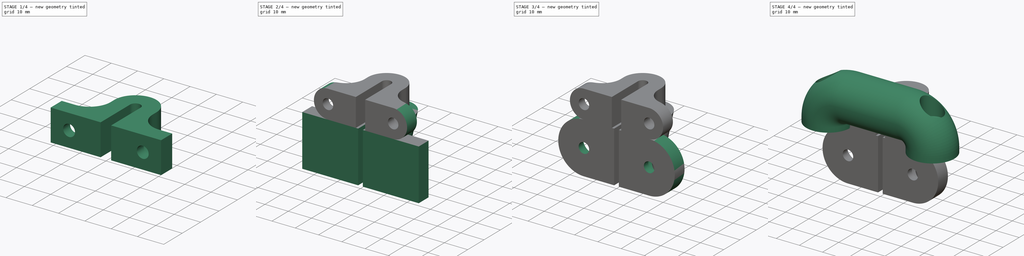
[diagram: build sequence overview — one tinted view per stage of 4, left to right]
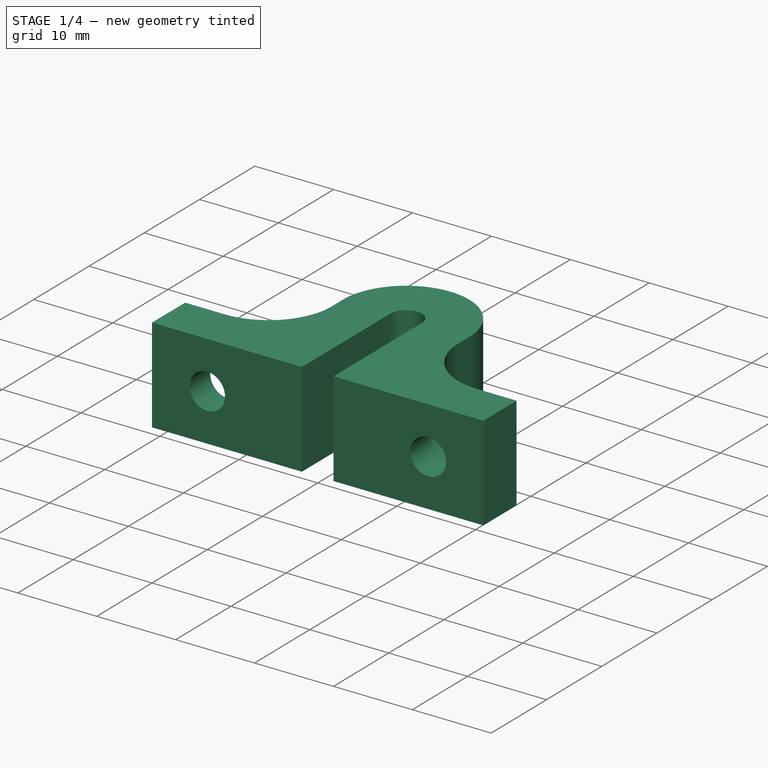
[diagram: stage 1 of 4 — iso view after this stage's code; geometry added in this stage tinted green]
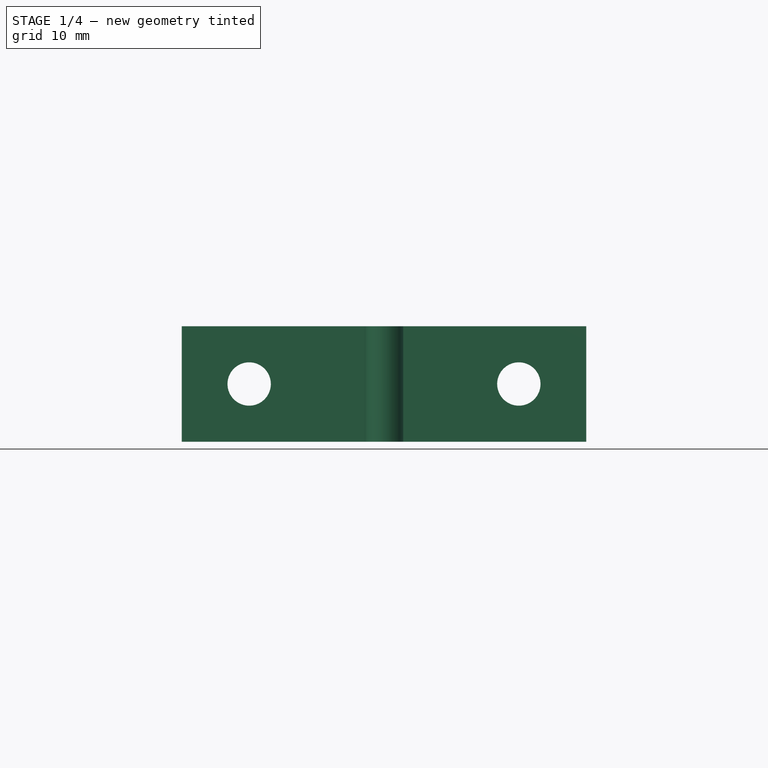
[diagram: stage 1 of 4 — front view after this stage's code; geometry added in this stage tinted green]
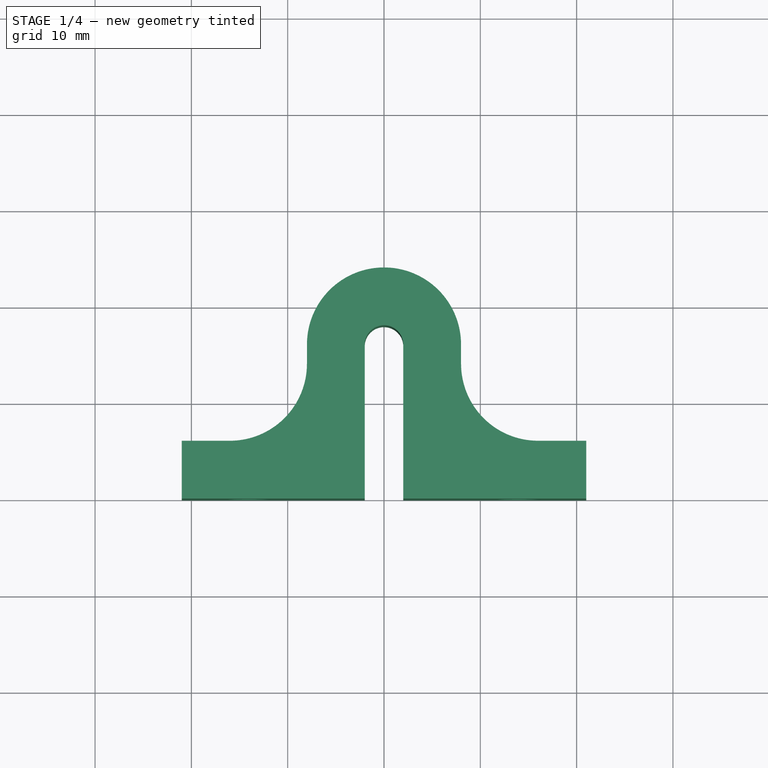
[diagram: stage 1 of 4 — top view after this stage's code; geometry added in this stage tinted green]
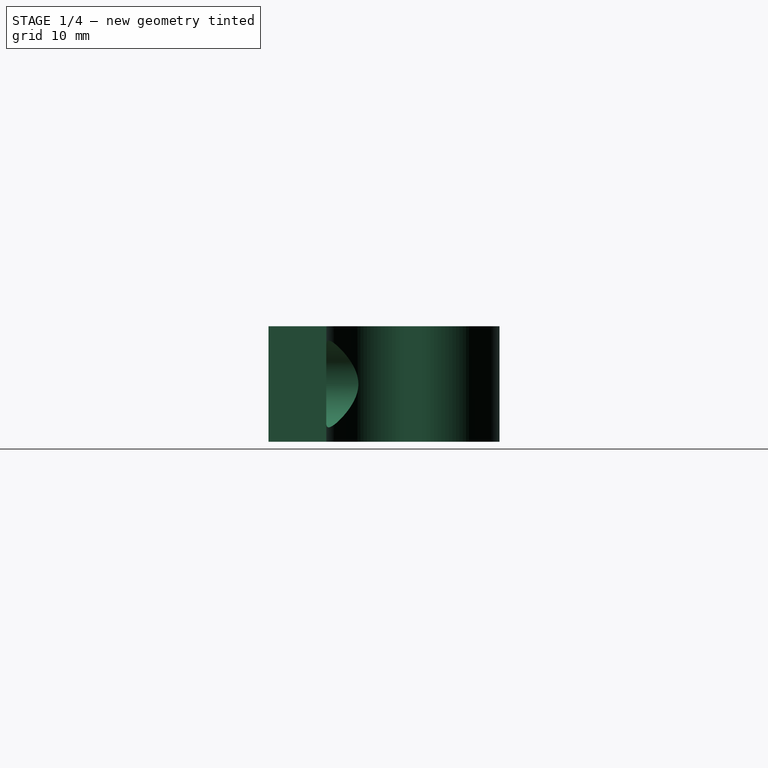
[diagram: stage 1 of 4 — right view after this stage's code; geometry added in this stage tinted green]
FCSTD DOCUMENT  (FreeCAD 1.0R39319 (Git))
Label: pruzina_kachnik
License: All rights reserved
LicenseURL: https://en.wikipedia.org/wiki/All_rights_reserved
objects: Sketcher::SketchObject×11, PartDesign::Pocket×4, PartDesign::Hole×3, PartDesign::Body×3, PartDesign::Pad×2, PartDesign::AdditivePipe×1
note: 55 computed .brp shape members not serialized (recipe doc carries the construction recipe); baked Part::Feature solids carry a one-line shape summary decoded from their .brp

FEATURE [PartDesign::Body] Body001  label="prichytka_naprt"
  AllowCompound = false
  Group = -> [Sketch003,Pad,Sketch004,Pocket,Sketch005,Pocket001,Sketch006,Pocket002,Sketch007,Hole001]
  Origin = -> Origin001
  Tip = -> Hole001
FEATURE [Sketcher::SketchObject] Sketch008
  ArcFitTolerance = 1e-06
  AttachmentSupport = -> [XY_Plane002]
  FullyConstrained = true
  MakeInternals = false
  MapMode = 5
  sketch-geometry (14):
    g0: LineSegment StartX=-2 StartY=0 StartZ=0 EndX=-21 EndY=0 EndZ=0
    g1: LineSegment StartX=2 StartY=0 StartZ=0 EndX=21 EndY=0 EndZ=0
    g2: LineSegment StartX=-2 StartY=0 StartZ=0 EndX=-2 EndY=16 EndZ=0
    g3: LineSegment StartX=2 StartY=0 StartZ=0 EndX=2 EndY=16 EndZ=0
    g4: ArcOfCircle CenterX=0 CenterY=16 CenterZ=0 NormalX=0 NormalY=0 NormalZ=1 AngleXU=0 Radius=2 StartAngle=2e-16 EndAngle=3.14159
    g5: ArcOfCircle CenterX=0 CenterY=16 CenterZ=0 NormalX=0 NormalY=0 NormalZ=1 AngleXU=0 Radius=8 StartAngle=0 EndAngle=3.14159
    g6: LineSegment StartX=-8 StartY=16 StartZ=0 EndX=-8 EndY=14 EndZ=0
    g7: LineSegment StartX=8 StartY=16 StartZ=0 EndX=8 EndY=14 EndZ=0
    g8: LineSegment StartX=21 StartY=0 StartZ=0 EndX=21 EndY=6 EndZ=0
    g9: LineSegment StartX=21 StartY=6 StartZ=0 EndX=16 EndY=6 EndZ=0
    g10: LineSegment StartX=-21 StartY=0 StartZ=0 EndX=-21 EndY=6 EndZ=0
    g11: LineSegment StartX=-21 StartY=6 StartZ=0 EndX=-16 EndY=6 EndZ=0
    g12: ArcOfCircle CenterX=-16 CenterY=14 CenterZ=0 NormalX=0 NormalY=0 NormalZ=1 AngleXU=0 Radius=8 StartAngle=4.71239 EndAngle=6.28319
    g13: ArcOfCircle CenterX=16 CenterY=14 CenterZ=0 NormalX=0 NormalY=0 NormalZ=1 AngleXU=0 Radius=8 StartAngle=3.14159 EndAngle=4.71239
  constraints (36):
    c: PointOnObject(g0,g-1)
    c: PointOnObject(g0,g-1)
    c: PointOnObject(g1,g-1)
    c: Coincident(g2,g0)
    c: Vertical(g2)
    c: Coincident(g3,g1)
    c: Vertical(g3)
    c: PointOnObject(g4,g-2)
    c: Tangent(g4,g2) = 1.5708
    c: Tangent(g4,g3) = -1.5708
    c: Symmetric(g0,g1,g-2)
    c: DistanceX(g0,g1) = 42
    c: DistanceX(g0,g1) = 4
    c: DistanceY(g-1,g4) = 16
    c: Coincident(g5,g4)
    c: Vertical(g6)
    c: Vertical(g7)
    c: Coincident(g8,g1)
    c: Vertical(g8)
    c: Coincident(g9,g8)
    c: Horizontal(g9)
    c: Coincident(g10,g0)
    c: Vertical(g10)
    c: Coincident(g11,g10)
    c: Horizontal(g11)
    c: Tangent(g7,g5) = 1.5708
    c: Tangent(g6,g5) = -1.5708
    c: Tangent(g12,g6) = 1.5708
    c: Tangent(g12,g11) = -1.5708
    c: Tangent(g13,g9) = 1.5708
    c: Tangent(g13,g7) = -1.5708
    c: DistanceX(g3,g5) = 6
    c: DistanceY(g8,g8) = 6
    c: Horizontal(g10,g8)
    c: Equal(g5,g12)
    c: Equal(g13,g12)
FEATURE [PartDesign::Pad] Pad001
  Direction = (0,0,1)
  Length = 12
  Length2 = 10
  Profile = -> Sketch008
  ReferenceAxis = -> Sketch008 [N_Axis]
  Refine = true
  Suppressed = false
  Type = 0
FEATURE [Sketcher::SketchObject] Sketch009
  ArcFitTolerance = 1e-06
  AttachmentOffset = pos=(0,0,-12) rot=(0,0,1;0rad)
  AttachmentSupport = -> [Pad001]
  ExternalGeometry = -> [Pad001]
  FullyConstrained = true
  MakeInternals = false
  MapMode = 5
  Placement = pos=(0,12,-2.7e-15) rot=(1,0,0;1.5708rad)
  sketch-geometry (4):
    g0: Circle CenterX=-14 CenterY=6 CenterZ=0 NormalX=0 NormalY=0 NormalZ=1 AngleXU=0 Radius=2.25
    g1: Circle CenterX=14 CenterY=6 CenterZ=0 NormalX=0 NormalY=0 NormalZ=1 AngleXU=0 Radius=2.25
    g2: LineSegment [constr] StartX=-21 StartY=12 StartZ=0 EndX=-14 EndY=6 EndZ=0
    g3: LineSegment [constr] StartX=-14 StartY=6 StartZ=0 EndX=-21 EndY=0 EndZ=0
  constraints (9):
    c: Symmetric(g0,g1,g-2)
    c: Coincident(g2,g-4)
    c: Coincident(g2,g0)
    c: Coincident(g3,g0)
    c: Coincident(g3,g-3)
    c: Equal(g2,g3)
    c: Equal(g0,g1)
    c: Diameter(g0) = 4.5
    c: DistanceX(g0,g1) = 28
FEATURE [PartDesign::Hole] Hole002
  BaseFeature = -> Pad001
  CustomThreadClearance = 0
  Depth = 25
  DepthType = 0
  Diameter = 4.5
  DrillForDepth = false
  DrillPoint = 1
  DrillPointAngle = 118
  HoleCutCountersinkAngle = 90
  HoleCutCustomValues = false
  HoleCutDepth = 6
  HoleCutDiameter = 9
  HoleCutType = 3
  ModelThread = false
  Profile = -> Sketch009
  Refine = true
  Reversed = true
  Suppressed = false
  Tapered = false
  TaperedAngle = 90
  ThreadClass = 0
  ThreadDepth = 25
  ThreadDepthType = 0
  ThreadDirection = 0
  ThreadFit = 0
  ThreadSize = 0
  ThreadType = 0
  Threaded = false
  UseCustomThreadClearance = false
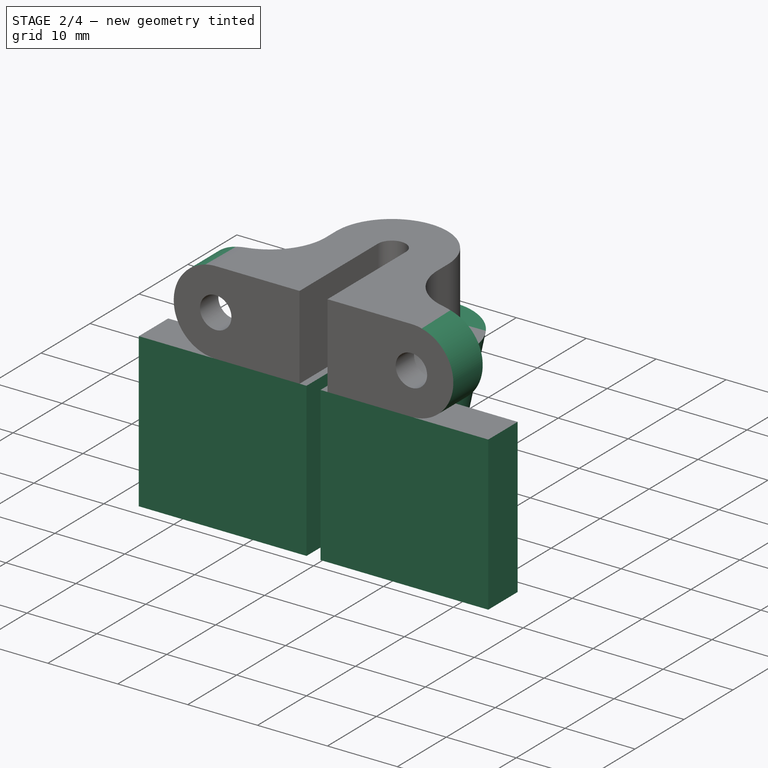
[diagram: stage 2 of 4 — iso view after this stage's code; geometry added in this stage tinted green]
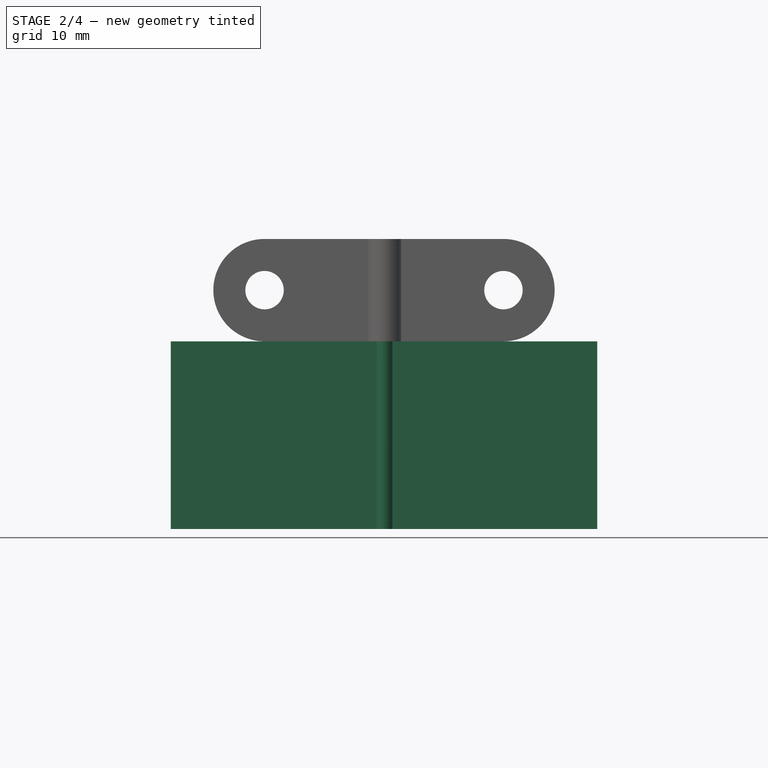
[diagram: stage 2 of 4 — front view after this stage's code; geometry added in this stage tinted green]
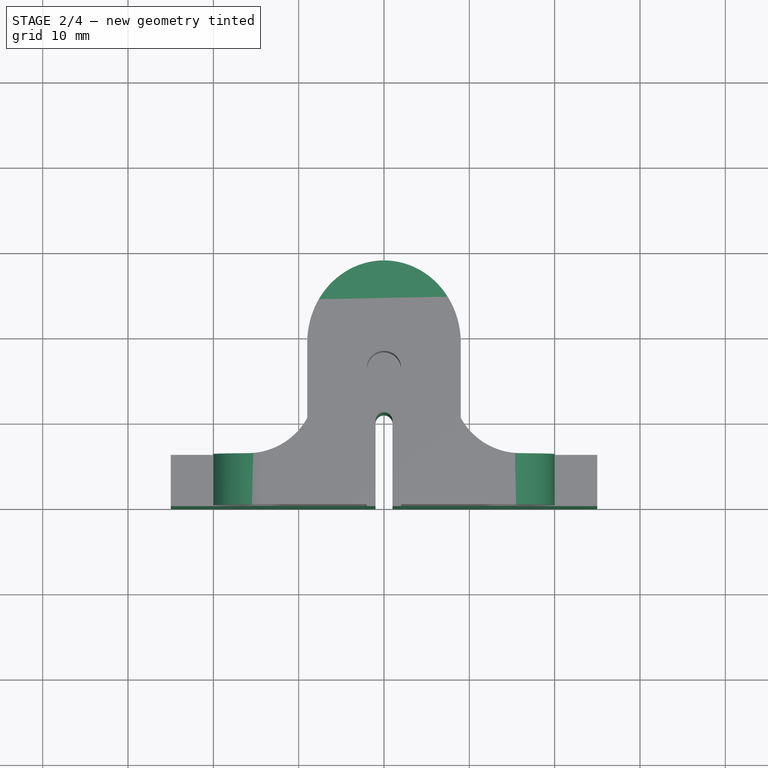
[diagram: stage 2 of 4 — top view after this stage's code; geometry added in this stage tinted green]
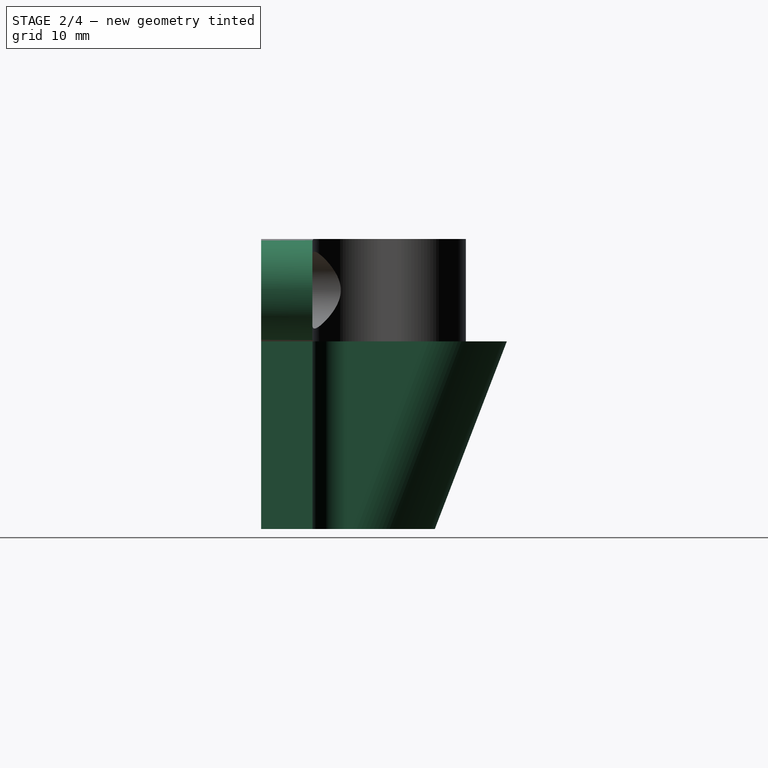
[diagram: stage 2 of 4 — right view after this stage's code; geometry added in this stage tinted green]
FEATURE [PartDesign::Body] Body  label="drzak_pruziny"
  AllowCompound = false
  Group = -> [Sketch,Sketch001,AdditivePipe,Sketch002,Hole]
  Origin = -> Origin
  Placement = pos=(1.7e-15,-4.9e-15,22) rot=(0,0.707107,0.707107;3.14159rad)
  Tip = -> Hole
FEATURE [Sketcher::SketchObject] Sketch003
  ArcFitTolerance = 1e-06
  AttachmentSupport = -> [XY_Plane001]
  FullyConstrained = true
  MakeInternals = false
  MapMode = 5
  sketch-geometry (14):
    g0: LineSegment StartX=-1 StartY=0 StartZ=0 EndX=-25 EndY=0 EndZ=0
    g1: LineSegment StartX=1 StartY=0 StartZ=0 EndX=25 EndY=0 EndZ=0
    g2: ArcOfCircle CenterX=2e-16 CenterY=20 CenterZ=0 NormalX=0 NormalY=0 NormalZ=1 AngleXU=0 Radius=9 StartAngle=0 EndAngle=3.14159
    g3: LineSegment StartX=-9 StartY=20 StartZ=0 EndX=-9 EndY=10 EndZ=0
    g4: LineSegment StartX=9 StartY=20 StartZ=0 EndX=9 EndY=10 EndZ=0
    g5: LineSegment StartX=-25 StartY=0 StartZ=0 EndX=-25 EndY=6 EndZ=0
    g6: LineSegment StartX=25 StartY=0 StartZ=0 EndX=25 EndY=6 EndZ=0
    g7: LineSegment StartX=-25 StartY=6 StartZ=0 EndX=-13 EndY=6 EndZ=0
    g8: LineSegment StartX=25 StartY=6 StartZ=0 EndX=13 EndY=6 EndZ=0
    g9: ArcOfCircle CenterX=-13 CenterY=10 CenterZ=0 NormalX=0 NormalY=0 NormalZ=1 AngleXU=0 Radius=4 StartAngle=4.71239 EndAngle=6.28319
    g10: ArcOfCircle CenterX=13 CenterY=10 CenterZ=0 NormalX=0 NormalY=0 NormalZ=1 AngleXU=0 Radius=4 StartAngle=3.14159 EndAngle=4.71239
    g11: LineSegment StartX=-1 StartY=0 StartZ=0 EndX=-1 EndY=10 EndZ=0
    g12: LineSegment StartX=1 StartY=0 StartZ=0 EndX=1 EndY=10 EndZ=0
    g13: ArcOfCircle CenterX=0 CenterY=10 CenterZ=0 NormalX=0 NormalY=0 NormalZ=1 AngleXU=0 Radius=1 StartAngle=3.3063e-12 EndAngle=3.14159
  constraints (36):
    c: PointOnObject(g0,g-1)
    c: PointOnObject(g0,g-1)
    c: PointOnObject(g1,g-1)
    c: PointOnObject(g1,g-1)
    c: Radius(g2) = 9
    c: Vertical(g3)
    c: Coincident(g5,g0)
    c: Vertical(g5)
    c: Coincident(g6,g1)
    c: Vertical(g6)
    c: Symmetric(g5,g6,g-2)
    c: Tangent(g3,g2) = -1.5708
    c: Tangent(g4,g2) = 1.5708
    c: DistanceY(g5,g5) = 6
    c: DistanceY(g1,g2) = 20
    c: Coincident(g7,g5)
    c: Horizontal(g7)
    c: Coincident(g8,g6)
    c: Horizontal(g8)
    c: Equal(g9,g10)
    c: Tangent(g9,g3) = 1.5708
    c: Tangent(g10,g4) = -1.5708
    c: Tangent(g10,g8) = 1.5708
    c: Tangent(g9,g7) = -1.5708
    c: Radius(g9) = 4
    c: DistanceX(g5,g2) = 16
    c: Coincident(g11,g0)
    c: Vertical(g11)
    c: Coincident(g12,g1)
    c: Vertical(g12)
    c: PointOnObject(g13,g-2)
    c: Radius(g13) = 1
    c: Tangent(g13,g11) = 1.5708
    c: Symmetric(g2,g2,g-2)
    c: DistanceY(g12,g12) = 10
    c: Tangent(g13,g12) = -1.5708
FEATURE [PartDesign::Pad] Pad
  Direction = (0,0,1)
  Length = 22
  Length2 = 10
  Profile = -> Sketch003
  ReferenceAxis = -> Sketch003 [N_Axis]
  Refine = true
  Reversed = true
  Suppressed = false
  Type = 0
FEATURE [Sketcher::SketchObject] Sketch004
  ArcFitTolerance = 1e-06
  AttachmentOffset = pos=(0,0,0) rot=(1,0,0;-0.366519rad)
  AttachmentSupport = -> [Pad]
  FullyConstrained = true
  MakeInternals = false
  MapMode = 5
  Placement = pos=(0,0,-22) rot=(-1,0,0;3.50811rad)
  sketch-geometry (4):
    g0: ArcOfCircle CenterX=0 CenterY=-10 CenterZ=0 NormalX=0 NormalY=0 NormalZ=1 AngleXU=0 Radius=9 StartAngle=3.14159 EndAngle=6.28319
    g1: LineSegment StartX=-9 StartY=-10 StartZ=0 EndX=-9 EndY=-30 EndZ=0
    g2: LineSegment StartX=-9 StartY=-30 StartZ=0 EndX=9 EndY=-30 EndZ=0
    g3: LineSegment StartX=9 StartY=-30 StartZ=0 EndX=9 EndY=-10 EndZ=0
  constraints (12):
    c: PointOnObject(g0,g-2)
    c: Tangent(g1,g0) = -1.5708
    c: Vertical(g1)
    c: Coincident(g2,g1)
    c: Horizontal(g2)
    c: Coincident(g3,g2)
    c: Coincident(g3,g0)
    c: Vertical(g3)
    c: DistanceX(g2,g2) = 18
    c: Horizontal(g0,g0)
    c: DistanceY(g0,g-1) = 10
    c: DistanceY(g1,g1) = 20
FEATURE [PartDesign::Pocket] Pocket
  BaseFeature = -> Pad
  Direction = (0,0.358368,0.93358)
  Length = 5
  Length2 = 5
  Profile = -> Sketch004
  ReferenceAxis = -> Sketch004 [N_Axis]
  Refine = true
  Suppressed = false
  Type = 1
FEATURE [Sketcher::SketchObject] Sketch010
  ArcFitTolerance = 1e-06
  AttachmentSupport = -> [Hole002]
  ExternalGeometry = -> [Hole002]
  FullyConstrained = true
  MakeInternals = false
  MapMode = 5
  Placement = pos=(0,0,0) rot=(1,0,0;1.5708rad)
  sketch-geometry (8):
    g0: ArcOfCircle CenterX=-14 CenterY=6 CenterZ=0 NormalX=0 NormalY=0 NormalZ=1 AngleXU=0 Radius=6 StartAngle=1.5708 EndAngle=4.71239
    g1: ArcOfCircle CenterX=14 CenterY=6 CenterZ=0 NormalX=0 NormalY=0 NormalZ=1 AngleXU=0 Radius=6 StartAngle=4.71239 EndAngle=7.85398
    g2: LineSegment StartX=-14 StartY=12 StartZ=0 EndX=14 EndY=12 EndZ=0
    g3: LineSegment StartX=-14 StartY=-6.602e-13 StartZ=0 EndX=14 EndY=1.0873e-12 EndZ=0
    g4: ArcOfCircle CenterX=-14 CenterY=6 CenterZ=0 NormalX=0 NormalY=0 NormalZ=1 AngleXU=0 Radius=9.21954 StartAngle=1.5708 EndAngle=4.71239
    g5: ArcOfCircle CenterX=14 CenterY=6 CenterZ=0 NormalX=0 NormalY=0 NormalZ=1 AngleXU=0 Radius=9.21954 StartAngle=4.71239 EndAngle=7.85398
    g6: LineSegment StartX=-14 StartY=15.2195 StartZ=0 EndX=14 EndY=15.2195 EndZ=0
    g7: LineSegment StartX=-14 StartY=-3.21954 StartZ=0 EndX=14 EndY=-3.21954 EndZ=0
  constraints (16):
    c: Tangent(g0,g2) = 1.5708
    c: Tangent(g0,g3) = -1.5708
    c: Tangent(g1,g2) = 1.5708
    c: Tangent(g1,g3) = -1.5708
    c: Equal(g0,g1)
    c: Coincident(g-5,g1)
    c: PointOnObject(g-4,g2)
    c: Coincident(g0,g-3)
    c: Tangent(g4,g6) = 1.5708
    c: Tangent(g4,g7) = -1.5708
    c: Tangent(g5,g6) = 1.5708
    c: Tangent(g5,g7) = -1.5708
    c: Equal(g4,g5)
    c: Coincident(g4,g0)
    c: Coincident(g1,g5)
    c: PointOnObject(g-4,g4)
FEATURE [PartDesign::Pocket] Pocket003
  BaseFeature = -> Hole002
  Direction = (0,1,-2e-16)
  Length = 5
  Length2 = 5
  Profile = -> Sketch010
  ReferenceAxis = -> Sketch010 [N_Axis]
  Refine = true
  Suppressed = false
  Type = 1
FEATURE [PartDesign::Body] Body002  label="prichytka"
  AllowCompound = false
  Group = -> [Sketch008,Pad001,Sketch009,Hole002,Sketch010,Pocket003]
  Origin = -> Origin002
  Tip = -> Pocket003
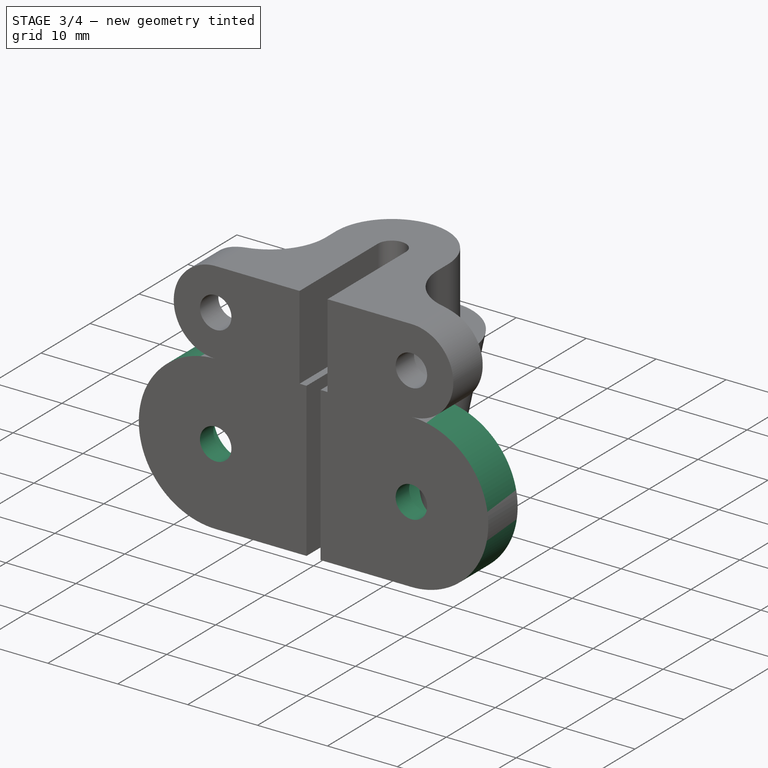
[diagram: stage 3 of 4 — iso view after this stage's code; geometry added in this stage tinted green]
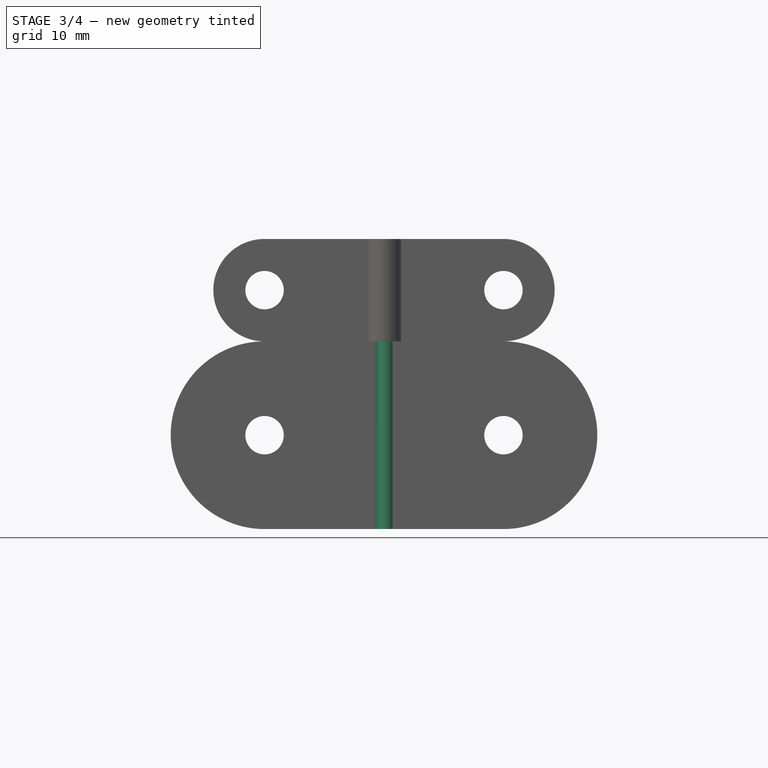
[diagram: stage 3 of 4 — front view after this stage's code; geometry added in this stage tinted green]
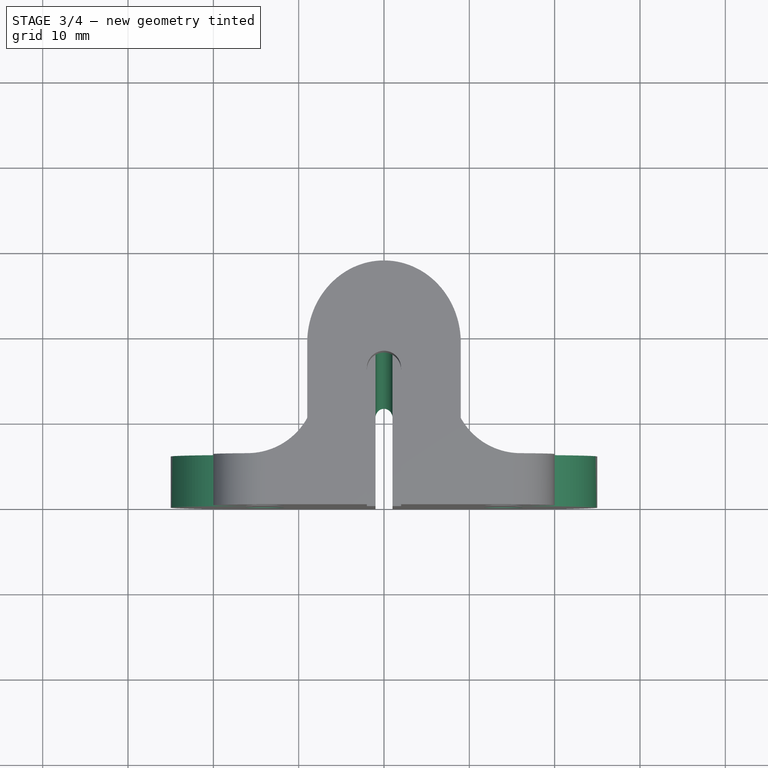
[diagram: stage 3 of 4 — top view after this stage's code; geometry added in this stage tinted green]
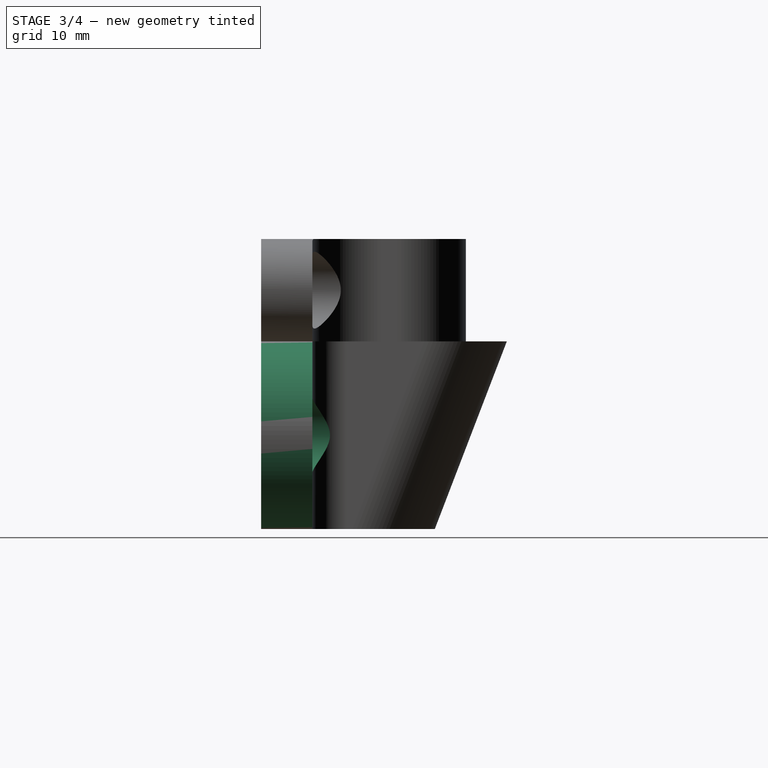
[diagram: stage 3 of 4 — right view after this stage's code; geometry added in this stage tinted green]
FEATURE [Sketcher::SketchObject] Sketch005
  ArcFitTolerance = 1e-06
  AttachmentOffset = pos=(0,0,0) rot=(1,0,0;-0.366519rad)
  AttachmentSupport = -> [Pocket]
  ExternalGeometry = -> [Pocket]
  FullyConstrained = true
  MakeInternals = false
  MapMode = 5
  Placement = pos=(0,0,0) rot=(1,0,0;5.91667rad)
  sketch-geometry (4):
    g0: ArcOfCircle CenterX=0 CenterY=17.8841 CenterZ=0 NormalX=0 NormalY=0 NormalZ=1 AngleXU=0 Radius=1 StartAngle=7.80064e-07 EndAngle=3.14159
    g1: LineSegment StartX=-1 StartY=17.8841 StartZ=0 EndX=-1 EndY=0 EndZ=0
    g2: LineSegment StartX=1 StartY=0 StartZ=0 EndX=1 EndY=17.8841 EndZ=0
    g3: LineSegment StartX=-1 StartY=0 StartZ=0 EndX=1 EndY=0 EndZ=0
  constraints (10):
    c: Coincident(g0,g-3)
    c: Coincident(g1,g0)
    c: Coincident(g1,g-4)
    c: Vertical(g1)
    c: Coincident(g2,g-5)
    c: Coincident(g2,g0)
    c: Vertical(g2)
    c: Tangent(g1,g0,g0) = -1.5708
    c: Coincident(g3,g1)
    c: Coincident(g3,g2)
FEATURE [PartDesign::Pocket] Pocket001
  BaseFeature = -> Pocket
  Direction = (0,-0.358368,-0.93358)
  Length = 5
  Length2 = 5
  Midplane = true
  Profile = -> Sketch005
  ReferenceAxis = -> Sketch005 [N_Axis]
  Refine = true
  Suppressed = false
  Type = 1
FEATURE [Sketcher::SketchObject] Sketch006
  ArcFitTolerance = 1e-06
  AttachmentSupport = -> [Pocket001]
  ExternalGeometry = -> [Pocket001]
  FullyConstrained = true
  MakeInternals = false
  MapMode = 5
  Placement = pos=(0,0,0) rot=(1,0,0;1.5708rad)
  sketch-geometry (8):
    g0: LineSegment StartX=-27 StartY=2 StartZ=0 EndX=-27 EndY=-24 EndZ=0
    g1: LineSegment StartX=-27 StartY=-24 StartZ=0 EndX=27 EndY=-24 EndZ=0
    g2: LineSegment StartX=27 StartY=-24 StartZ=0 EndX=27 EndY=2 EndZ=0
    g3: LineSegment StartX=27 StartY=2 StartZ=0 EndX=-27 EndY=2 EndZ=0
    g4: ArcOfCircle CenterX=-14 CenterY=-11 CenterZ=0 NormalX=0 NormalY=0 NormalZ=1 AngleXU=0 Radius=11 StartAngle=1.5708 EndAngle=4.71239
    g5: ArcOfCircle CenterX=14 CenterY=-11 CenterZ=0 NormalX=0 NormalY=0 NormalZ=1 AngleXU=0 Radius=11 StartAngle=4.71239 EndAngle=7.85398
    g6: LineSegment StartX=-14 StartY=0 StartZ=0 EndX=14 EndY=0 EndZ=0
    g7: LineSegment StartX=-14 StartY=-22 StartZ=0 EndX=14 EndY=-22 EndZ=0
  constraints (22):
    c: Coincident(g0,g1)
    c: Coincident(g1,g2)
    c: Coincident(g2,g3)
    c: Coincident(g3,g0)
    c: Vertical(g0)
    c: Vertical(g2)
    c: Horizontal(g1)
    c: Horizontal(g3)
    c: Tangent(g4,g6) = 1.5708
    c: Tangent(g4,g7) = -1.5708
    c: Tangent(g5,g6) = 1.5708
    c: Tangent(g5,g7) = -1.5708
    c: Equal(g4,g5)
    c: Horizontal(g6)
    c: Tangent(g4,g-3)
    c: Tangent(g5,g-4)
    c: Horizontal(g-8,g4)
    c: Horizontal(g-7,g4)
    c: DistanceY(g-8,g0) = 2
    c: DistanceY(g0,g-7) = 2
    c: DistanceX(g0,g-8) = 2
    c: DistanceX(g-5,g2) = 2
FEATURE [PartDesign::Pocket] Pocket002
  BaseFeature = -> Pocket001
  Direction = (0,1,-2e-16)
  Length = 5
  Length2 = 5
  Profile = -> Sketch006
  ReferenceAxis = -> Sketch006 [N_Axis]
  Refine = true
  Suppressed = false
  Type = 1
FEATURE [Sketcher::SketchObject] Sketch007
  ArcFitTolerance = 1e-06
  AttachmentOffset = pos=(0,0,-10) rot=(0,0,1;0rad)
  AttachmentSupport = -> [XZ_Plane001]
  ExternalGeometry = -> [Pocket002]
  FullyConstrained = true
  MakeInternals = false
  MapMode = 5
  Placement = pos=(0,10,-2.2e-15) rot=(1,0,0;1.5708rad)
  sketch-geometry (2):
    g0: Circle CenterX=-14 CenterY=-11 CenterZ=0 NormalX=0 NormalY=0 NormalZ=1 AngleXU=0 Radius=2.25
    g1: Circle CenterX=14 CenterY=-11 CenterZ=0 NormalX=0 NormalY=0 NormalZ=1 AngleXU=0 Radius=2.25
  constraints (4):
    c: Coincident(g0,g-3)
    c: Coincident(g1,g-4)
    c: Equal(g0,g1)
    c: Diameter(g0) = 4.5
FEATURE [PartDesign::Hole] Hole001
  BaseFeature = -> Pocket002
  CustomThreadClearance = 0
  Depth = 25
  DepthType = 0
  Diameter = 4.5
  DrillForDepth = false
  DrillPoint = 1
  DrillPointAngle = 118
  HoleCutCountersinkAngle = 90
  HoleCutCustomValues = false
  HoleCutDepth = 5
  HoleCutDiameter = 9
  HoleCutType = 3
  ModelThread = false
  Profile = -> Sketch007
  Refine = true
  Reversed = true
  Suppressed = false
  Tapered = false
  TaperedAngle = 90
  ThreadClass = 0
  ThreadDepth = 25
  ThreadDepthType = 0
  ThreadDirection = 0
  ThreadFit = 0
  ThreadSize = 0
  ThreadType = 0
  Threaded = false
  UseCustomThreadClearance = false
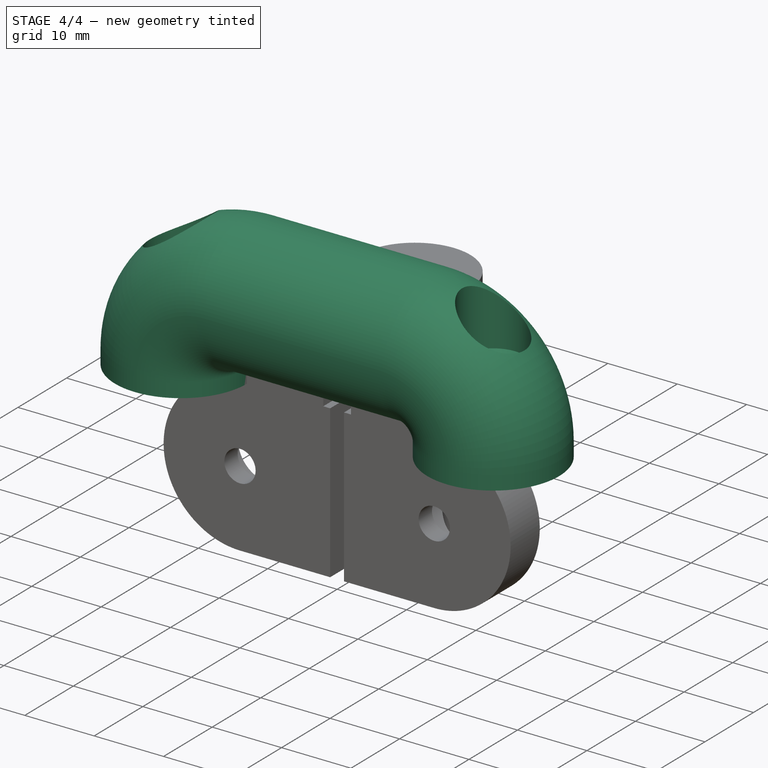
[diagram: stage 4 of 4 — iso view after this stage's code; geometry added in this stage tinted green]
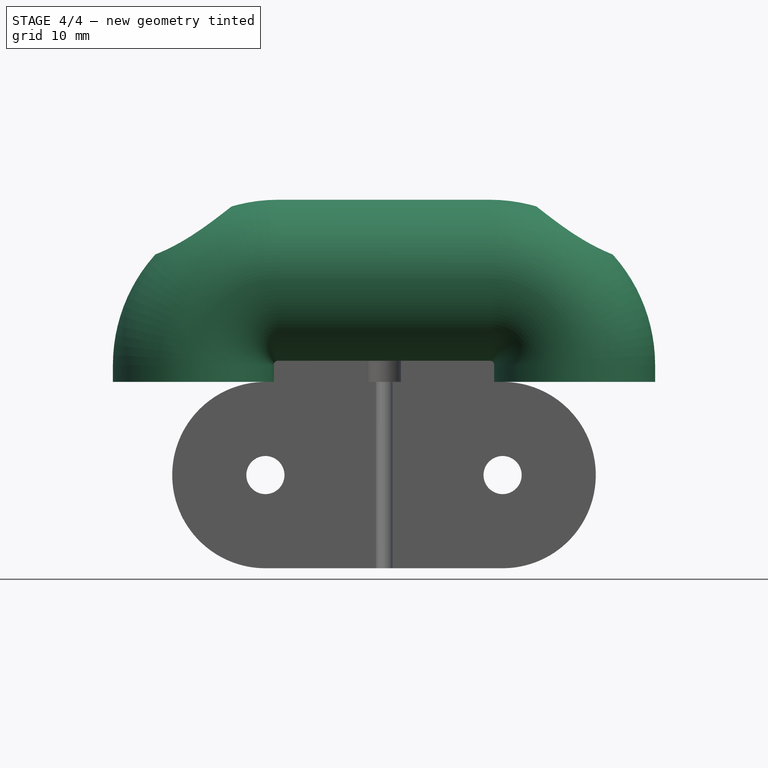
[diagram: stage 4 of 4 — front view after this stage's code; geometry added in this stage tinted green]
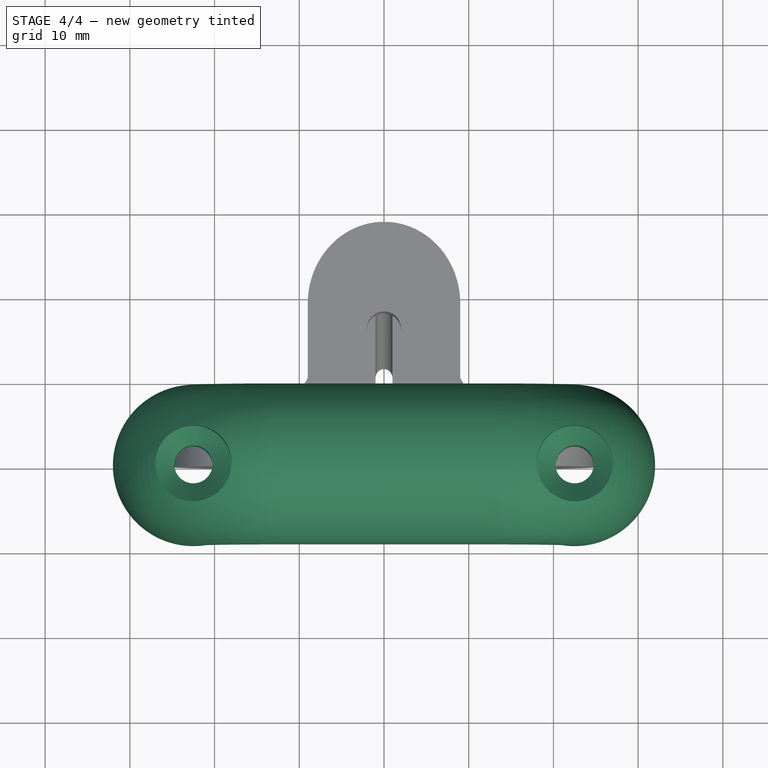
[diagram: stage 4 of 4 — top view after this stage's code; geometry added in this stage tinted green]
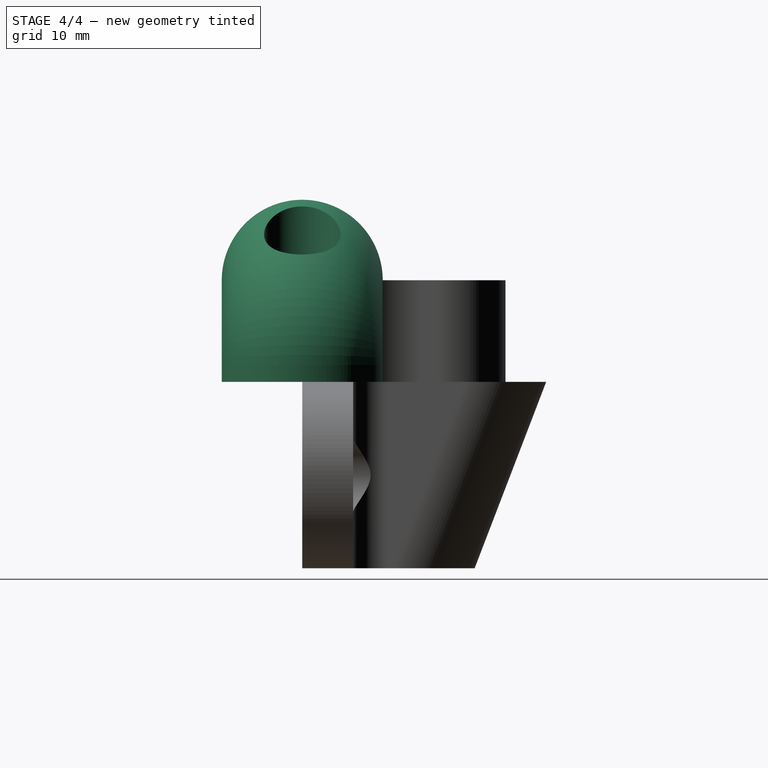
[diagram: stage 4 of 4 — right view after this stage's code; geometry added in this stage tinted green]
FEATURE [Sketcher::SketchObject] Sketch
  ArcFitTolerance = 1e-06
  AttachmentSupport = -> [XZ_Plane]
  FullyConstrained = true
  MakeInternals = false
  MapMode = 5
  Placement = pos=(0,0,0) rot=(1,0,0;1.5708rad)
  sketch-geometry (5):
    g0: LineSegment StartX=-22.5 StartY=0 StartZ=0 EndX=-22.5 EndY=2 EndZ=0
    g1: ArcOfCircle CenterX=-12.5 CenterY=2 CenterZ=0 NormalX=0 NormalY=0 NormalZ=1 AngleXU=0 Radius=10 StartAngle=1.5708 EndAngle=3.14159
    g2: LineSegment StartX=-12.5 StartY=12 StartZ=0 EndX=12.5 EndY=12 EndZ=0
    g3: ArcOfCircle CenterX=12.5 CenterY=2 CenterZ=0 NormalX=0 NormalY=0 NormalZ=1 AngleXU=0 Radius=10 StartAngle=0 EndAngle=1.5708
    g4: LineSegment StartX=22.5 StartY=2 StartZ=0 EndX=22.5 EndY=0 EndZ=0
  constraints (13):
    c: PointOnObject(g0,g-1)
    c: Vertical(g0)
    c: PointOnObject(g4,g-1)
    c: Vertical(g4)
    c: Symmetric(g1,g2,g-2)
    c: Tangent(g2,g1) = 1.5708
    c: Tangent(g3,g2) = 1.5708
    c: Tangent(g4,g3) = 1.5708
    c: Tangent(g1,g0) = 1.5708
    c: Equal(g1,g3)
    c: DistanceY(g0,g0) = 2
    c: Radius(g1) = 10
    c: DistanceX(g2,g2) = 25
FEATURE [Sketcher::SketchObject] Sketch001
  ArcFitTolerance = 1e-06
  AttachmentSupport = -> [XY_Plane]
  ExternalGeometry = -> [Sketch]
  FullyConstrained = true
  MakeInternals = false
  MapMode = 5
  sketch-geometry (1):
    g0: Circle CenterX=-22.5 CenterY=0 CenterZ=0 NormalX=0 NormalY=0 NormalZ=1 AngleXU=0 Radius=9.5
  constraints (2):
    c: Coincident(g0,g-3)
    c: Diameter(g0) = 19
FEATURE [PartDesign::AdditivePipe] AdditivePipe
  AuxilleryCurvelinear = true
  AuxillerySpineTangent = false
  Binormal = (0,0,0)
  Mode = 0
  Profile = -> Sketch001
  Refine = true
  Spine = -> Sketch
  SpineTangent = false
  Suppressed = false
  Transformation = 0
  Transition = 0
FEATURE [Sketcher::SketchObject] Sketch002
  ArcFitTolerance = 1e-06
  AttachmentOffset = pos=(0,0,22) rot=(0,0,1;0rad)
  AttachmentSupport = -> [XY_Plane]
  ExternalGeometry = -> [Sketch]
  FullyConstrained = true
  MakeInternals = false
  MapMode = 5
  Placement = pos=(0,0,22) rot=(0,0,1;0rad)
  sketch-geometry (2):
    g0: Circle CenterX=22.5 CenterY=0 CenterZ=0 NormalX=0 NormalY=0 NormalZ=1 AngleXU=0 Radius=2.25
    g1: Circle CenterX=-22.5 CenterY=0 CenterZ=0 NormalX=0 NormalY=0 NormalZ=1 AngleXU=0 Radius=2.25
  constraints (4):
    c: Coincident(g0,g-3)
    c: Coincident(g1,g-4)
    c: Equal(g1,g0)
    c: Diameter(g1) = 4.5
FEATURE [PartDesign::Hole] Hole
  BaseFeature = -> AdditivePipe
  CustomThreadClearance = 0
  Depth = 25
  DepthType = 0
  Diameter = 4.5
  DrillForDepth = false
  DrillPoint = 1
  DrillPointAngle = 118
  HoleCutCountersinkAngle = 90
  HoleCutCustomValues = false
  HoleCutDepth = 10
  HoleCutDiameter = 9
  HoleCutType = 3
  ModelThread = false
  Profile = -> Sketch002
  Refine = true
  Suppressed = false
  Tapered = false
  TaperedAngle = 90
  ThreadClass = 0
  ThreadDepth = 25
  ThreadDepthType = 0
  ThreadDirection = 0
  ThreadFit = 0
  ThreadSize = 0
  ThreadType = 0
  Threaded = false
  UseCustomThreadClearance = false
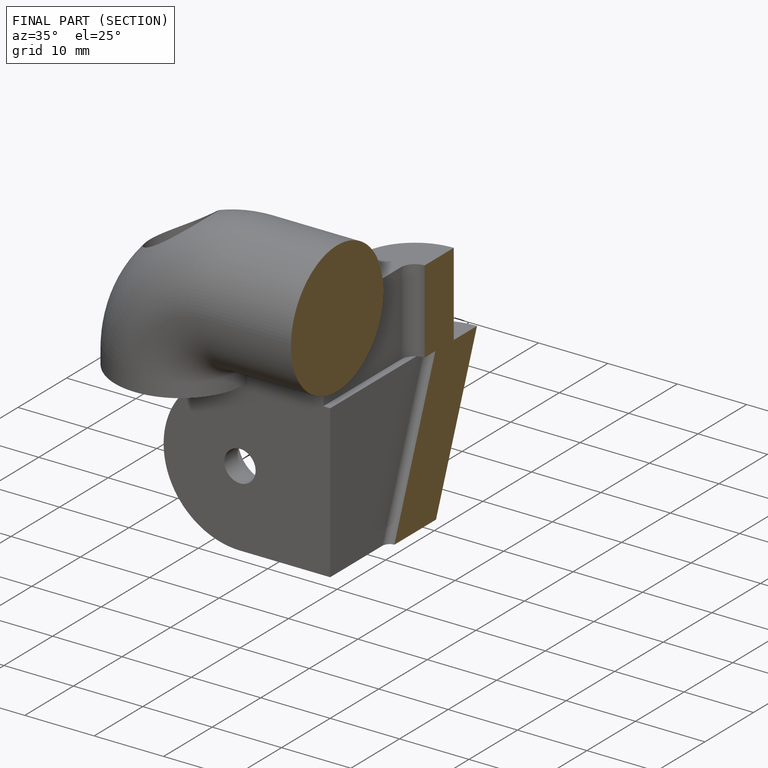
[diagram: finished part — half-section view (interior)]
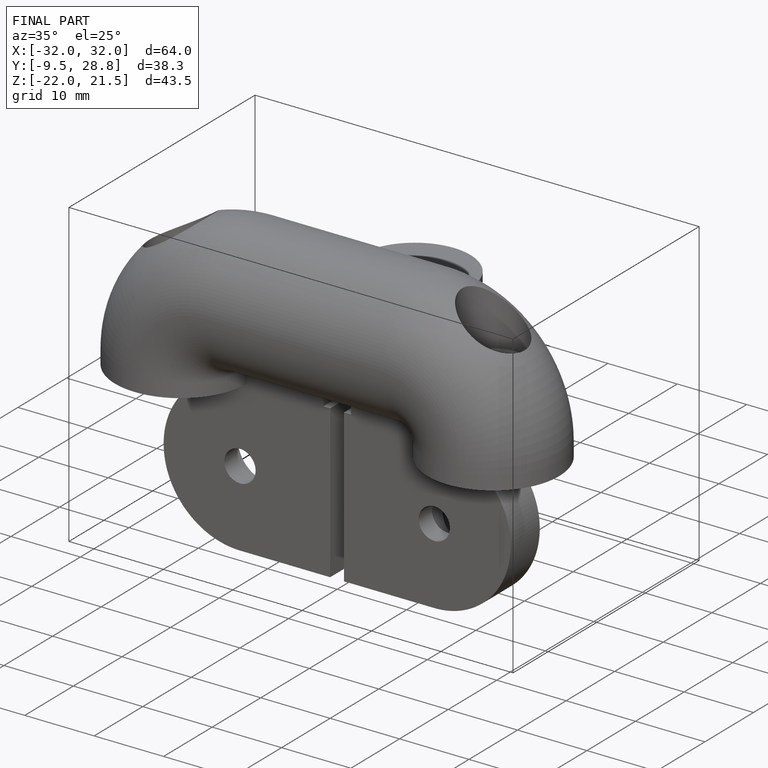
[diagram: finished part — iso view with bounding-box wireframe]
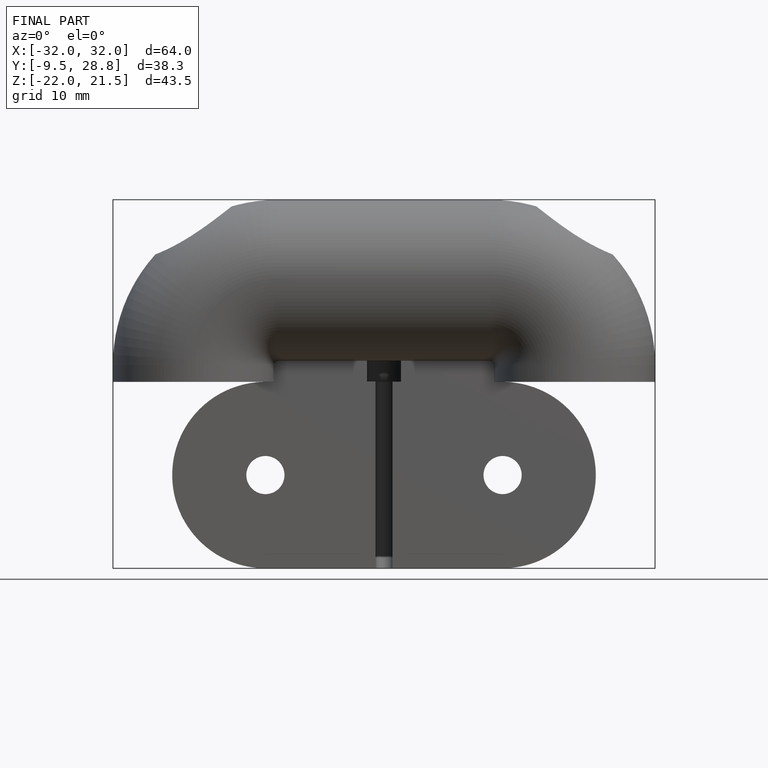
[diagram: finished part — front view with bounding-box wireframe]
